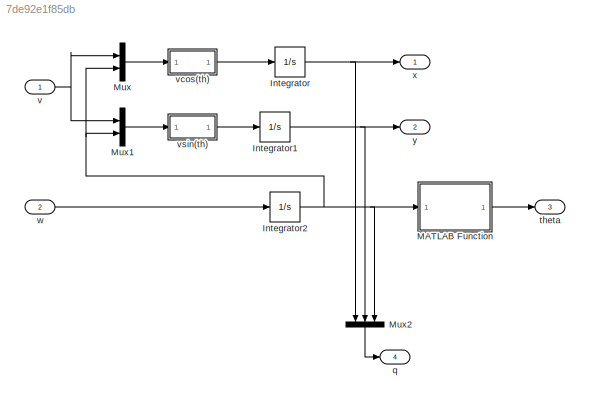
MODEL slx_7de92e1f85db
KIND model
CONFIG AbsTol = auto
CONFIG EnableMultiTasking = off
CONFIG FixedStep = auto
CONFIG MaxStep = auto
CONFIG MinStep = auto
CONFIG RelTol = 1e-3
CONFIG SampleTimeConstraint = Unconstrained
CONFIG SolverName = VariableStepAuto
CONFIG StartTime = 0.0
CONFIG StopTime = 10.0
BLOCK [Integrator] Integrator
BLOCK [Integrator] Integrator1
BLOCK [Integrator] Integrator2
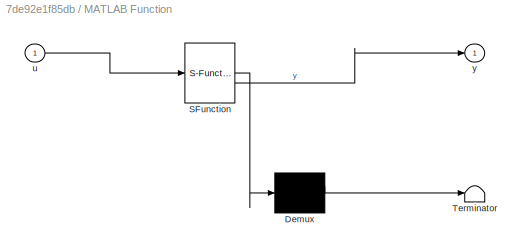
BLOCK [SubSystem] MATLAB Function
  ErrorFcn = Stateflow.Translate.translate
  PermitHierarchicalResolution = ExplicitOnly
  SFBlockType = MATLAB Function
  TreatAsAtomicUnit = on
BLOCK [Demux] MATLAB Function/ Demux 
  Outputs = 1
BLOCK [S-Function] MATLAB Function/ SFunction 
  EnableBusSupport = off
  FunctionName = sf_sfun
  PortCounts = [1 2]
  SFcnIsStateOwnerBlock = off
  SFunctionDeploymentMode = off
  Tag = Stateflow S-Function 3
BLOCK [Terminator] MATLAB Function/ Terminator 
BLOCK [Inport] MATLAB Function/u
BLOCK [Outport] MATLAB Function/y
BLOCK [Mux] Mux
  DisplayOption = bar
  Inputs = 2
BLOCK [Mux] Mux1
  DisplayOption = bar
  Inputs = 2
BLOCK [Mux] Mux2
  DisplayOption = bar
  Inputs = 3
  NameLocation = left
BLOCK [Outport] q
  Port = 4
BLOCK [Outport] theta
  Port = 3
BLOCK [Inport] v
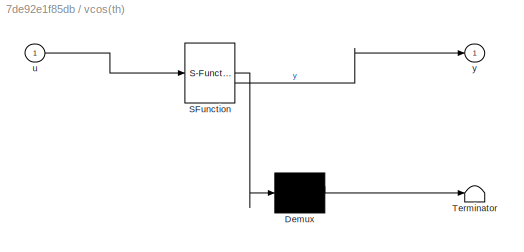
BLOCK [SubSystem] vcos(th)
  ErrorFcn = Stateflow.Translate.translate
  PermitHierarchicalResolution = ExplicitOnly
  SFBlockType = MATLAB Function
  TreatAsAtomicUnit = on
BLOCK [Demux] vcos(th)/ Demux 
  Outputs = 1
BLOCK [S-Function] vcos(th)/ SFunction 
  EnableBusSupport = off
  FunctionName = sf_sfun
  PortCounts = [1 2]
  SFcnIsStateOwnerBlock = off
  SFunctionDeploymentMode = off
  Tag = Stateflow S-Function 2
BLOCK [Terminator] vcos(th)/ Terminator 
BLOCK [Inport] vcos(th)/u
BLOCK [Outport] vcos(th)/y
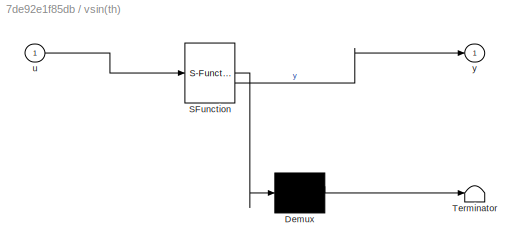
BLOCK [SubSystem] vsin(th)
  ErrorFcn = Stateflow.Translate.translate
  PermitHierarchicalResolution = ExplicitOnly
  SFBlockType = MATLAB Function
  TreatAsAtomicUnit = on
BLOCK [Demux] vsin(th)/ Demux 
  Outputs = 1
BLOCK [S-Function] vsin(th)/ SFunction 
  EnableBusSupport = off
  FunctionName = sf_sfun
  PortCounts = [1 2]
  SFcnIsStateOwnerBlock = off
  SFunctionDeploymentMode = off
  Tag = Stateflow S-Function 1
BLOCK [Terminator] vsin(th)/ Terminator 
BLOCK [Inport] vsin(th)/u
BLOCK [Outport] vsin(th)/y
BLOCK [Inport] w
  Port = 2
BLOCK [Outport] x
BLOCK [Outport] y
  Port = 2
NET Integrator1:1 -> Mux2:2, y:1
NET Integrator2:1 -> MATLAB Function:1, Mux1:2, Mux2:3, Mux:2
NET Integrator:1 -> Mux2:1, x:1
LINE MATLAB Function:1 -> theta:1
LINE Mux1:1 -> vsin(th):1
LINE Mux2:1 -> q:1
LINE Mux:1 -> vcos(th):1
NET v:1 -> Mux1:1, Mux:1
LINE vcos(th):1 -> Integrator:1
LINE vsin(th):1 -> Integrator1:1
LINE w:1 -> Integrator2:1
note: NET lines group one-source signal fan-out (src -> all destinations, sorted); 1:1 wires keep LINE
CHART vcos(th) states=1 transitions=1
  STATE_LABEL 'eML_blk_kernel()'
  STATE_LABEL 'SCRIPT:\nfunction y = fcn(u)\nv = u(1);\ntheta = u(2);\ny = v * cos(theta);\n'
CHART MATLAB Function states=1 transitions=1
  STATE_LABEL 'eML_blk_kernel()'
  STATE_LABEL 'SCRIPT:\nfunction y = fcn(u)\n\ny = wrapToPi(u);\n'
CHART vsin(th) states=1 transitions=1
  STATE_LABEL 'eML_blk_kernel()'
  STATE_LABEL 'SCRIPT:\nfunction y = fcn(u)\nv = u(1);\ntheta = u(2);\ny = v * sin(theta);\n'
CHART  states=0 transitions=0
CHART  states=0 transitions=0
CHART  states=0 transitions=0
